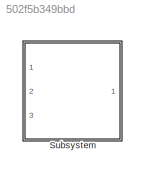
MODEL slx_502f5b349bbd
KIND library
CONFIG AbsTol = auto
CONFIG EnableMultiTasking = off
CONFIG FixedStep = auto
CONFIG MaxStep = auto
CONFIG MinStep = auto
CONFIG RelTol = 1e-3
CONFIG SampleTimeConstraint = Unconstrained
CONFIG Solver = VariableStepAuto
CONFIG SolverName = VariableStepAuto
CONFIG StartTime = 0.0
CONFIG StopTime = 10.0
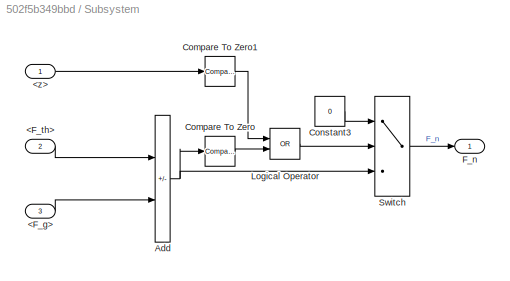
BLOCK [SubSystem] Subsystem
  Ports = [3, 1]
  RequestExecContextInheritance = off
BLOCK [Inport] Subsystem/<F_g>
  Port = 3
BLOCK [Inport] Subsystem/<F_th>
  Port = 2
BLOCK [Inport] Subsystem/<z>
BLOCK [Sum] Subsystem/Add
  IconShape = rectangular
  Inputs = --
  Ports = [2, 1]
BLOCK [Reference] Subsystem/Compare To Zero  REF=simulink/Logic and Bit
Operations/Compare
To Zero
  Ports = [1, 1]
  SourceBlock = simulink/Logic and Bit\nOperations/Compare\nTo Zero
  SourceProductBaseCode = SL
  SourceType = Compare To Zero
BLOCK [Reference] Subsystem/Compare To Zero1  REF=simulink/Logic and Bit
Operations/Compare
To Zero
  Ports = [1, 1]
  SourceBlock = simulink/Logic and Bit\nOperations/Compare\nTo Zero
  SourceProductBaseCode = SL
  SourceType = Compare To Zero
BLOCK [Constant] Subsystem/Constant3
  Value = 0
BLOCK [Outport] Subsystem/F_n
BLOCK [Logic] Subsystem/Logical Operator
  AllPortsSameDT = off
  Operator = OR
  OutDataTypeStr = boolean
  Ports = [2, 1]
BLOCK [Switch] Subsystem/Switch
  Criteria = u2 > Threshold
  InputSameDT = off
  SaturateOnIntegerOverflow = off
LINE Subsystem/<F_g>:1 -> Subsystem/Add:2
LINE Subsystem/<F_th>:1 -> Subsystem/Add:1
LINE Subsystem/<z>:1 -> Subsystem/Compare To Zero1:1
NET Subsystem/Add:1 -> Subsystem/Compare To Zero:1, Subsystem/Switch:3
LINE Subsystem/Compare To Zero1:1 -> Subsystem/Logical Operator:1
LINE Subsystem/Compare To Zero:1 -> Subsystem/Logical Operator:2
LINE Subsystem/Constant3:1 -> Subsystem/Switch:1
LINE Subsystem/Logical Operator:1 -> Subsystem/Switch:2
LINE Subsystem/Switch:1 -> Subsystem/F_n:1
note: NET lines group one-source signal fan-out (src -> all destinations, sorted); 1:1 wires keep LINE
